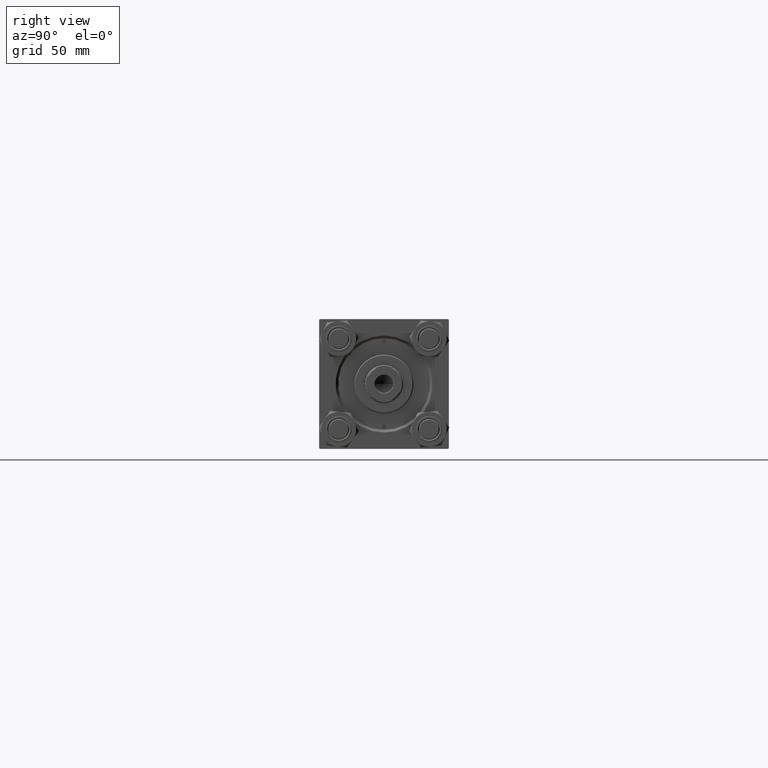
[diagram: clean part render]
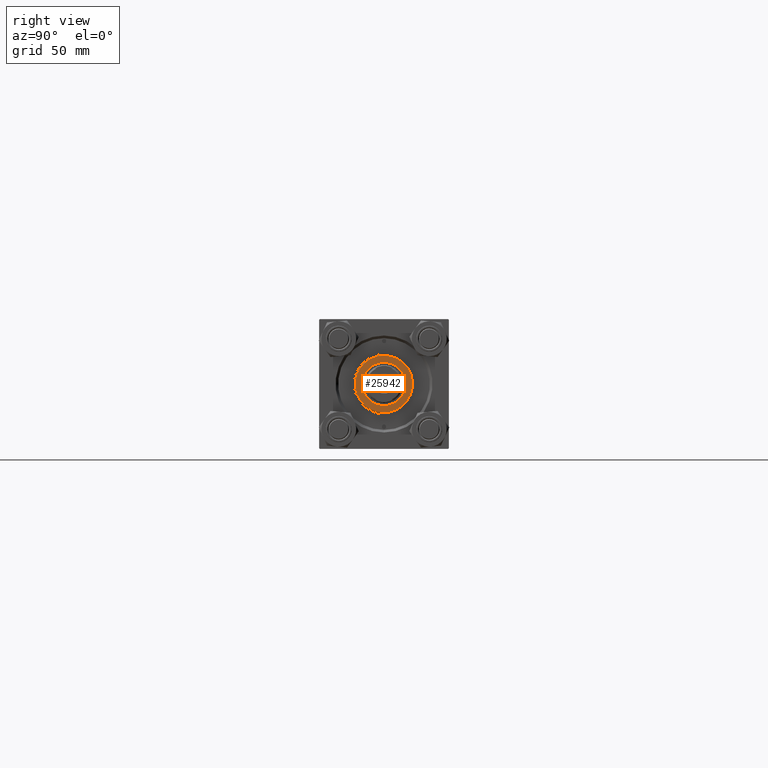
[diagram: same view with one face highlighted and labeled with its STEP entity id]
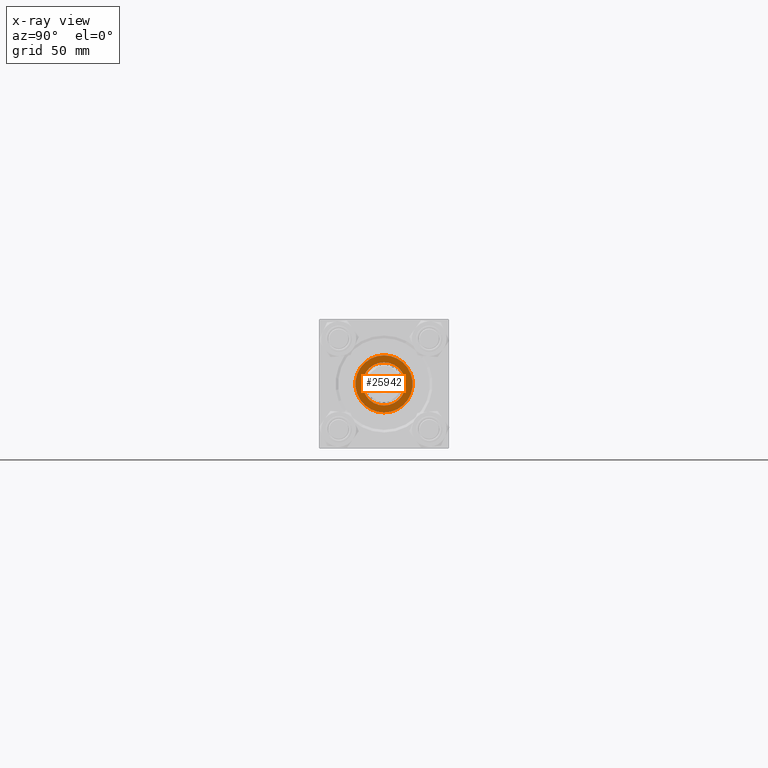
[diagram: x-ray of the same camera — body ghosted, the highlighted face saturated]
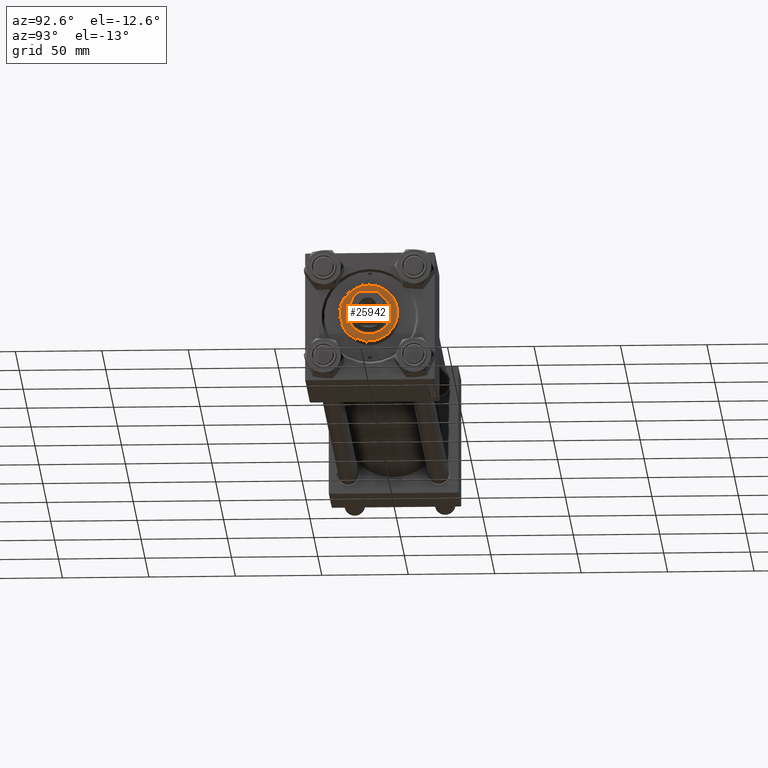
[diagram: same view with one face highlighted and labeled with its STEP entity id]
A machine part, right view. The second image highlights one B-rep face of the part: STEP entity #25942.
The next image is the same camera in x-ray: the body ghosted, the highlighted face saturated — about 0% of this face is hidden behind the body in this view.
A second angle (auxiliary view) of the same face is appended — the face is thin or edge-on in the first view.
In plain terms, the highlighted planar face has unit normal (1, 0, -0).
Its self-contained STEP definition (entity closure, byte-faithful):
#28 = ORIENTED_EDGE ( 'NONE', *, *, #47331, .T. ) ;
#762 = CARTESIAN_POINT ( 'NONE',  ( 16.50000000000000000, 2.051283388571816887E-15, 37.69999999999999574 ) ) ;
#3219 = CARTESIAN_POINT ( 'NONE',  ( 0.000000000000000000, 0.000000000000000000, 37.69999999999999574 ) ) ;
#5008 = DIRECTION ( 'NONE',  ( 1.000000000000000000, 0.000000000000000000, 0.000000000000000000 ) ) ;
#9178 = CARTESIAN_POINT ( 'NONE',  ( -12.50000000000000000, 1.530808498934191521E-15, 37.69999999999999574 ) ) ;
#9746 = CIRCLE ( 'NONE', #12986, 12.50000000000000000 ) ;
#10299 = DIRECTION ( 'NONE',  ( 0.000000000000000000, 0.000000000000000000, 1.000000000000000000 ) ) ;
#11821 = DIRECTION ( 'NONE',  ( 1.000000000000000000, 0.000000000000000000, 0.000000000000000000 ) ) ;
#12599 = CARTESIAN_POINT ( 'NONE',  ( 0.000000000000000000, 0.000000000000000000, 37.69999999999999574 ) ) ;
#12986 = AXIS2_PLACEMENT_3D ( 'NONE', #15849, #22930, #11821 ) ;
#14198 = EDGE_CURVE ( 'NONE', #23765, #47072, #30003, .T. ) ;
#14689 = AXIS2_PLACEMENT_3D ( 'NONE', #45564, #43872, #14777 ) ;
#14777 = DIRECTION ( 'NONE',  ( 1.000000000000000000, 0.000000000000000000, -0.000000000000000000 ) ) ;
#15849 = CARTESIAN_POINT ( 'NONE',  ( 0.000000000000000000, 0.000000000000000000, 37.69999999999999574 ) ) ;
#19270 = EDGE_LOOP ( 'NONE', ( #28, #22489 ) ) ;
#21444 = VERTEX_POINT ( 'NONE', #22570 ) ;
#21528 = ORIENTED_EDGE ( 'NONE', *, *, #21822, .F. ) ;
#21822 = EDGE_CURVE ( 'NONE', #47788, #21444, #41164, .T. ) ;
#22489 = ORIENTED_EDGE ( 'NONE', *, *, #14198, .T. ) ;
#22503 = ORIENTED_EDGE ( 'NONE', *, *, #23204, .F. ) ;
#22570 = CARTESIAN_POINT ( 'NONE',  ( 12.50000000000000000, 0.000000000000000000, 37.69999999999999574 ) ) ;
#22930 = DIRECTION ( 'NONE',  ( 0.000000000000000000, 0.000000000000000000, 1.000000000000000000 ) ) ;
#23204 = EDGE_CURVE ( 'NONE', #21444, #47788, #9746, .T. ) ;
#23765 = VERTEX_POINT ( 'NONE', #762 ) ;
#24235 = AXIS2_PLACEMENT_3D ( 'NONE', #39395, #43905, #43419 ) ;
#25942 = ADVANCED_FACE ( 'NONE', ( #29934, #45318 ), #49093, .T. ) ;
#26068 = AXIS2_PLACEMENT_3D ( 'NONE', #3219, #10299, #30238 ) ;
#29934 = FACE_BOUND ( 'NONE', #36955, .T. ) ;
#30003 = CIRCLE ( 'NONE', #33211, 16.50000000000000000 ) ;
#30238 = DIRECTION ( 'NONE',  ( 1.000000000000000000, 0.000000000000000000, 0.000000000000000000 ) ) ;
#31296 = CARTESIAN_POINT ( 'NONE',  ( -16.50000000000000000, 0.000000000000000000, 37.69999999999999574 ) ) ;
#33211 = AXIS2_PLACEMENT_3D ( 'NONE', #12599, #47170, #5008 ) ;
#36955 = EDGE_LOOP ( 'NONE', ( #22503, #21528 ) ) ;
#39395 = CARTESIAN_POINT ( 'NONE',  ( 0.000000000000000000, 0.000000000000000000, 37.69999999999999574 ) ) ;
#41164 = CIRCLE ( 'NONE', #24235, 12.50000000000000000 ) ;
#43419 = DIRECTION ( 'NONE',  ( 1.000000000000000000, 0.000000000000000000, 0.000000000000000000 ) ) ;
#43872 = DIRECTION ( 'NONE',  ( 0.000000000000000000, 0.000000000000000000, 1.000000000000000000 ) ) ;
#43905 = DIRECTION ( 'NONE',  ( 0.000000000000000000, 0.000000000000000000, 1.000000000000000000 ) ) ;
#45318 = FACE_OUTER_BOUND ( 'NONE', #19270, .T. ) ;
#45564 = CARTESIAN_POINT ( 'NONE',  ( 0.000000000000000000, 0.000000000000000000, 37.69999999999999574 ) ) ;
#47016 = CIRCLE ( 'NONE', #26068, 16.50000000000000000 ) ;
#47072 = VERTEX_POINT ( 'NONE', #31296 ) ;
#47170 = DIRECTION ( 'NONE',  ( 0.000000000000000000, 0.000000000000000000, 1.000000000000000000 ) ) ;
#47331 = EDGE_CURVE ( 'NONE', #47072, #23765, #47016, .T. ) ;
#47788 = VERTEX_POINT ( 'NONE', #9178 ) ;
#49093 = PLANE ( 'NONE',  #14689 ) ;